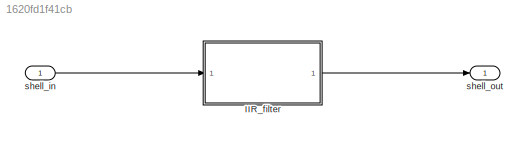
MODEL slx_1620fd1f41cb
KIND model
CONFIG AbsTol = auto
CONFIG EnableMultiTasking = off
CONFIG FixedStep = auto
CONFIG MaxStep = auto
CONFIG MinStep = auto
CONFIG RelTol = 1e-3
CONFIG SampleTimeConstraint = Unconstrained
CONFIG SolverName = FixedStepDiscrete
CONFIG StartTime = 0.0
CONFIG StopTime = 10.0
WORKSPACE source: MATLAB code (in-file)
WORKSPACE fs = 48e3  (= 48000)
WORKSPACE code: flow = 0.2e3; Wlow = flow/(fs/2); %normalized flow
WORKSPACE code: fhigh = 2.5e3; Whigh = fhigh/(fs/2); %normalized fhigh
WORKSPACE n = 3
WORKSPACE PB_ripple = 1
WORKSPACE SB_atten = 60
WORKSPACE code: [b,a] = ellip(n,PB_ripple,SB_atten,[Wlow Whigh], 'bandpass');
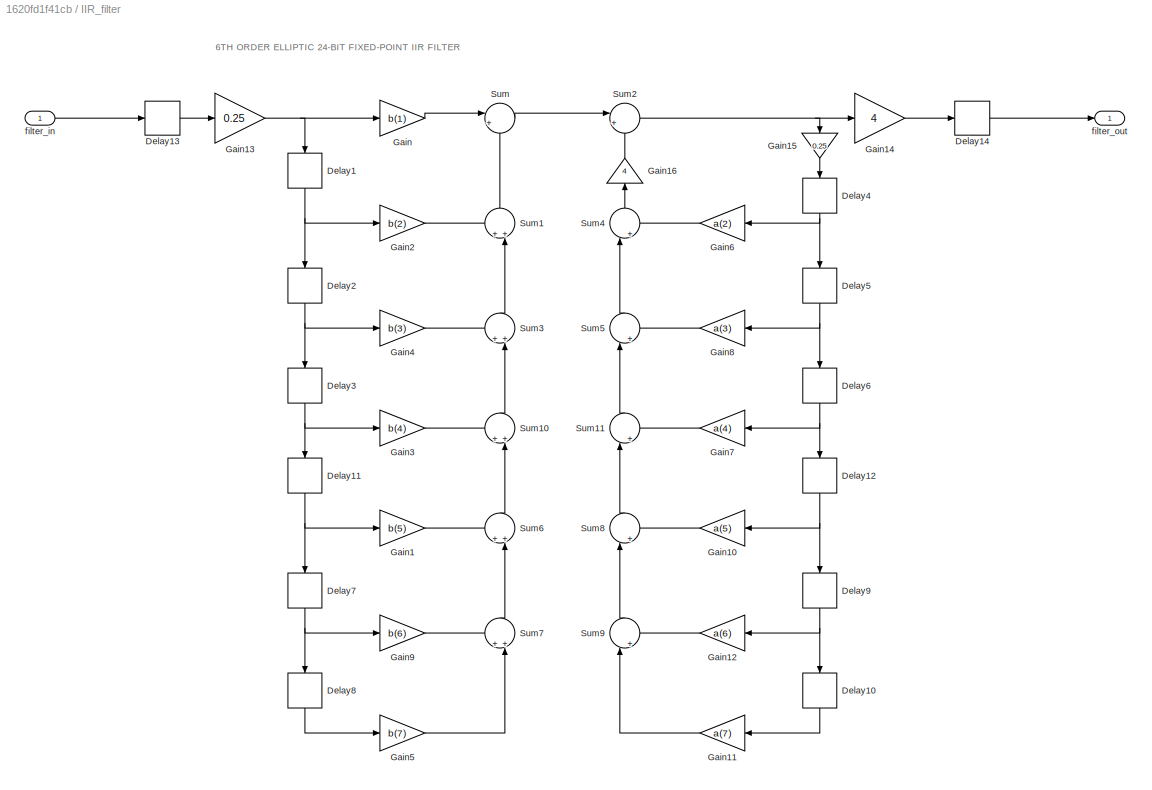
BLOCK [SubSystem] IIR_filter
  Ports = [1, 1]
  RequestExecContextInheritance = off
BLOCK [Delay] IIR_filter/Delay1
  DelayLength = 1
  InputPortMap = u0
  NameLocation = left
  Ports = [1, 1]
BLOCK [Delay] IIR_filter/Delay10
  DelayLength = 1
  InputPortMap = u0
  NameLocation = left
  Ports = [1, 1]
BLOCK [Delay] IIR_filter/Delay11
  DelayLength = 1
  InputPortMap = u0
  NameLocation = left
  Ports = [1, 1]
BLOCK [Delay] IIR_filter/Delay12
  DelayLength = 1
  InputPortMap = u0
  NameLocation = left
  Ports = [1, 1]
BLOCK [Delay] IIR_filter/Delay13
  DelayLength = 1
  InputPortMap = u0
  Ports = [1, 1]
BLOCK [Delay] IIR_filter/Delay14
  DelayLength = 1
  InputPortMap = u0
  Ports = [1, 1]
BLOCK [Delay] IIR_filter/Delay2
  DelayLength = 1
  InputPortMap = u0
  NameLocation = left
  Ports = [1, 1]
BLOCK [Delay] IIR_filter/Delay3
  DelayLength = 1
  InputPortMap = u0
  NameLocation = left
  Ports = [1, 1]
BLOCK [Delay] IIR_filter/Delay4
  DelayLength = 1
  InputPortMap = u0
  NameLocation = left
  Ports = [1, 1]
BLOCK [Delay] IIR_filter/Delay5
  DelayLength = 1
  InputPortMap = u0
  NameLocation = left
  Ports = [1, 1]
BLOCK [Delay] IIR_filter/Delay6
  DelayLength = 1
  InputPortMap = u0
  NameLocation = left
  Ports = [1, 1]
BLOCK [Delay] IIR_filter/Delay7
  DelayLength = 1
  InputPortMap = u0
  NameLocation = left
  Ports = [1, 1]
BLOCK [Delay] IIR_filter/Delay8
  DelayLength = 1
  InputPortMap = u0
  NameLocation = left
  Ports = [1, 1]
BLOCK [Delay] IIR_filter/Delay9
  DelayLength = 1
  InputPortMap = u0
  NameLocation = left
  Ports = [1, 1]
BLOCK [Gain] IIR_filter/Gain
  Gain = b(1)
  OutDataTypeStr = fixdt(1,24)
  OutMax = [1]
  OutMin = [-1]
BLOCK [Gain] IIR_filter/Gain1
  Gain = b(5)
  OutDataTypeStr = fixdt(1,24)
  OutMax = [1]
  OutMin = [-1]
BLOCK [Gain] IIR_filter/Gain10
  Gain = a(5)
  OutDataTypeStr = fixdt(1,24)
  OutMax = [1]
  OutMin = [-1]
BLOCK [Gain] IIR_filter/Gain11
  Gain = a(7)
  OutDataTypeStr = fixdt(1,24)
  OutMax = [1]
  OutMin = [-1]
BLOCK [Gain] IIR_filter/Gain12
  Gain = a(6)
  OutDataTypeStr = fixdt(1,24)
  OutMax = [1]
  OutMin = [-1]
BLOCK [Gain] IIR_filter/Gain13
  Gain = 0.25
  OutDataTypeStr = fixdt(1,24)
  OutMax = [1]
  OutMin = [-1]
BLOCK [Gain] IIR_filter/Gain14
  Gain = 4
  OutDataTypeStr = fixdt(1,24)
  OutMax = [1]
  OutMin = [-1]
BLOCK [Gain] IIR_filter/Gain15
  Commented = through
  Gain = 0.25
  NameLocation = left
  OutDataTypeStr = fixdt(1,24)
  OutMax = [1]
  OutMin = [-1]
BLOCK [Gain] IIR_filter/Gain16
  Commented = through
  Gain = 4
  NameLocation = right
  OutDataTypeStr = fixdt(1,24)
  OutMax = [1]
  OutMin = [-1]
BLOCK [Gain] IIR_filter/Gain2
  Gain = b(2)
  OutDataTypeStr = fixdt(1,24)
  OutMax = [1]
  OutMin = [-1]
BLOCK [Gain] IIR_filter/Gain3
  Gain = b(4)
  OutDataTypeStr = fixdt(1,24)
  OutMax = [1]
  OutMin = [-1]
BLOCK [Gain] IIR_filter/Gain4
  Gain = b(3)
  OutDataTypeStr = fixdt(1,24)
  OutMax = [1]
  OutMin = [-1]
BLOCK [Gain] IIR_filter/Gain5
  Gain = b(7)
  OutDataTypeStr = fixdt(1,24)
  OutMax = [1]
  OutMin = [-1]
BLOCK [Gain] IIR_filter/Gain6
  Gain = a(2)
  OutDataTypeStr = fixdt(1,24)
  OutMax = [1]
  OutMin = [-1]
BLOCK [Gain] IIR_filter/Gain7
  Gain = a(4)
  OutDataTypeStr = fixdt(1,24)
  OutMax = [1]
  OutMin = [-1]
BLOCK [Gain] IIR_filter/Gain8
  Gain = a(3)
  OutDataTypeStr = fixdt(1,24)
  OutMax = [1]
  OutMin = [-1]
BLOCK [Gain] IIR_filter/Gain9
  Gain = b(6)
  OutDataTypeStr = fixdt(1,24)
  OutMax = [1]
  OutMin = [-1]
BLOCK [Sum] IIR_filter/Sum
  Inputs = |++
  NameLocation = top
  OutDataTypeStr = Inherit: Inherit via back propagation
  OutMax = [1]
  OutMin = [-1]
  Ports = [2, 1]
BLOCK [Sum] IIR_filter/Sum1
  Inputs = ++|
  NameLocation = left
  OutDataTypeStr = Inherit: Inherit via back propagation
  OutMax = [1]
  OutMin = [-1]
  Ports = [2, 1]
BLOCK [Sum] IIR_filter/Sum10
  Inputs = ++|
  NameLocation = left
  OutDataTypeStr = Inherit: Inherit via back propagation
  OutMax = [1]
  OutMin = [-1]
  Ports = [2, 1]
BLOCK [Sum] IIR_filter/Sum11
  Inputs = |++
  NameLocation = left
  OutDataTypeStr = Inherit: Inherit via back propagation
  OutMax = [1]
  OutMin = [-1]
  Ports = [2, 1]
BLOCK [Sum] IIR_filter/Sum2
  Inputs = |+-
  OutDataTypeStr = Inherit: Inherit via back propagation
  OutMax = [1]
  OutMin = [-1]
  Ports = [2, 1]
BLOCK [Sum] IIR_filter/Sum3
  Inputs = ++|
  NameLocation = left
  OutDataTypeStr = Inherit: Inherit via back propagation
  OutMax = [1]
  OutMin = [-1]
  Ports = [2, 1]
BLOCK [Sum] IIR_filter/Sum4
  Inputs = |++
  NameLocation = left
  OutDataTypeStr = Inherit: Inherit via back propagation
  OutMax = [1]
  OutMin = [-1]
  Ports = [2, 1]
BLOCK [Sum] IIR_filter/Sum5
  Inputs = |++
  NameLocation = left
  OutDataTypeStr = Inherit: Inherit via back propagation
  OutMax = [1]
  OutMin = [-1]
  Ports = [2, 1]
BLOCK [Sum] IIR_filter/Sum6
  Inputs = ++|
  NameLocation = left
  OutDataTypeStr = Inherit: Inherit via back propagation
  OutMax = [1]
  OutMin = [-1]
  Ports = [2, 1]
BLOCK [Sum] IIR_filter/Sum7
  Inputs = ++|
  NameLocation = left
  OutDataTypeStr = Inherit: Inherit via back propagation
  OutMax = [1]
  OutMin = [-1]
  Ports = [2, 1]
BLOCK [Sum] IIR_filter/Sum8
  Inputs = |++
  NameLocation = left
  OutDataTypeStr = Inherit: Inherit via back propagation
  OutMax = [1]
  OutMin = [-1]
  Ports = [2, 1]
BLOCK [Sum] IIR_filter/Sum9
  Inputs = |++
  NameLocation = left
  OutDataTypeStr = Inherit: Inherit via back propagation
  OutMax = [1]
  OutMin = [-1]
  Ports = [2, 1]
BLOCK [Inport] IIR_filter/filter_in
  OutDataTypeStr = fixdt(1,24)
  OutMax = [1]
  OutMin = [-1]
BLOCK [Outport] IIR_filter/filter_out
  NameLocation = top
  OutDataTypeStr = fixdt(1,24)
  OutMax = [1]
  OutMin = [-1]
BLOCK [Inport] shell_in
BLOCK [Outport] shell_out
  VectorParamsAs1DForOutWhenUnconnected = off
ANNOTATION IIR_filter: 6TH ORDER ELLIPTIC 24-BIT FIXED-POINT IIR FILTER
LINE IIR_filter/Delay10:1 -> IIR_filter/Gain11:1
NET IIR_filter/Delay11:1 -> IIR_filter/Delay7:1, IIR_filter/Gain1:1
NET IIR_filter/Delay12:1 -> IIR_filter/Delay9:1, IIR_filter/Gain10:1
LINE IIR_filter/Delay13:1 -> IIR_filter/Gain13:1
LINE IIR_filter/Delay14:1 -> IIR_filter/filter_out:1
NET IIR_filter/Delay1:1 -> IIR_filter/Delay2:1, IIR_filter/Gain2:1
NET IIR_filter/Delay2:1 -> IIR_filter/Delay3:1, IIR_filter/Gain4:1
NET IIR_filter/Delay3:1 -> IIR_filter/Delay11:1, IIR_filter/Gain3:1
NET IIR_filter/Delay4:1 -> IIR_filter/Delay5:1, IIR_filter/Gain6:1
NET IIR_filter/Delay5:1 -> IIR_filter/Delay6:1, IIR_filter/Gain8:1
NET IIR_filter/Delay6:1 -> IIR_filter/Delay12:1, IIR_filter/Gain7:1
NET IIR_filter/Delay7:1 -> IIR_filter/Delay8:1, IIR_filter/Gain9:1
LINE IIR_filter/Delay8:1 -> IIR_filter/Gain5:1
NET IIR_filter/Delay9:1 -> IIR_filter/Delay10:1, IIR_filter/Gain12:1
LINE IIR_filter/Gain10:1 -> IIR_filter/Sum8:2
LINE IIR_filter/Gain11:1 -> IIR_filter/Sum9:1
LINE IIR_filter/Gain12:1 -> IIR_filter/Sum9:2
NET IIR_filter/Gain13:1 -> IIR_filter/Delay1:1, IIR_filter/Gain:1
LINE IIR_filter/Gain14:1 -> IIR_filter/Delay14:1
LINE IIR_filter/Gain15:1 -> IIR_filter/Delay4:1
LINE IIR_filter/Gain16:1 -> IIR_filter/Sum2:2
LINE IIR_filter/Gain1:1 -> IIR_filter/Sum6:1
LINE IIR_filter/Gain2:1 -> IIR_filter/Sum1:1
LINE IIR_filter/Gain3:1 -> IIR_filter/Sum10:1
LINE IIR_filter/Gain4:1 -> IIR_filter/Sum3:1
LINE IIR_filter/Gain5:1 -> IIR_filter/Sum7:2
LINE IIR_filter/Gain6:1 -> IIR_filter/Sum4:2
LINE IIR_filter/Gain7:1 -> IIR_filter/Sum11:2
LINE IIR_filter/Gain8:1 -> IIR_filter/Sum5:2
LINE IIR_filter/Gain9:1 -> IIR_filter/Sum7:1
LINE IIR_filter/Gain:1 -> IIR_filter/Sum:1
LINE IIR_filter/Sum10:1 -> IIR_filter/Sum3:2
LINE IIR_filter/Sum11:1 -> IIR_filter/Sum5:1
LINE IIR_filter/Sum1:1 -> IIR_filter/Sum:2
NET IIR_filter/Sum2:1 -> IIR_filter/Gain14:1, IIR_filter/Gain15:1
LINE IIR_filter/Sum3:1 -> IIR_filter/Sum1:2
LINE IIR_filter/Sum4:1 -> IIR_filter/Gain16:1
LINE IIR_filter/Sum5:1 -> IIR_filter/Sum4:1
LINE IIR_filter/Sum6:1 -> IIR_filter/Sum10:2
LINE IIR_filter/Sum7:1 -> IIR_filter/Sum6:2
LINE IIR_filter/Sum8:1 -> IIR_filter/Sum11:1
LINE IIR_filter/Sum9:1 -> IIR_filter/Sum8:1
LINE IIR_filter/Sum:1 -> IIR_filter/Sum2:1
LINE IIR_filter/filter_in:1 -> IIR_filter/Delay13:1
LINE IIR_filter:1 -> shell_out:1
LINE shell_in:1 -> IIR_filter:1
note: NET lines group one-source signal fan-out (src -> all destinations, sorted); 1:1 wires keep LINE
